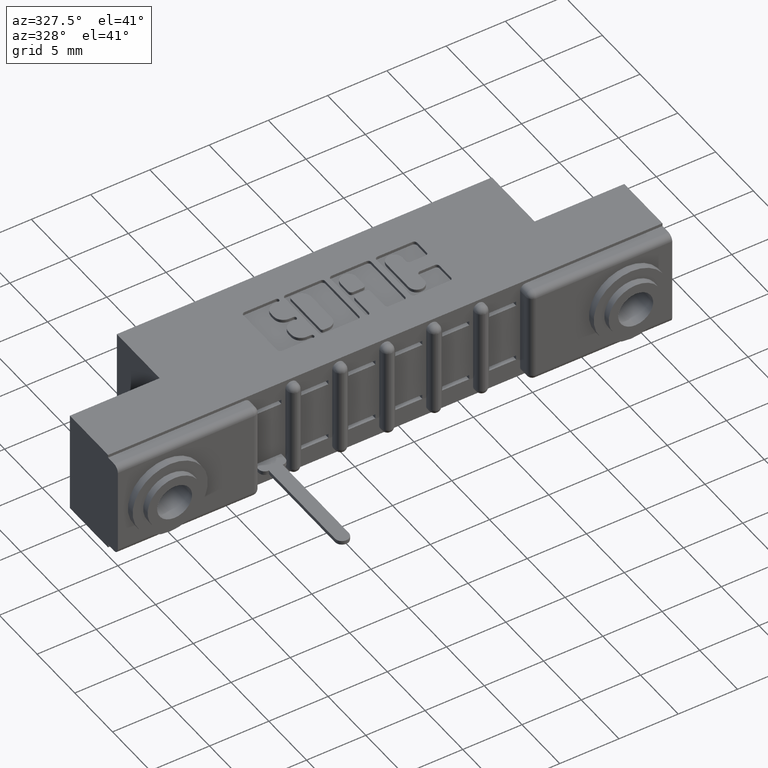
[diagram: clean part render]
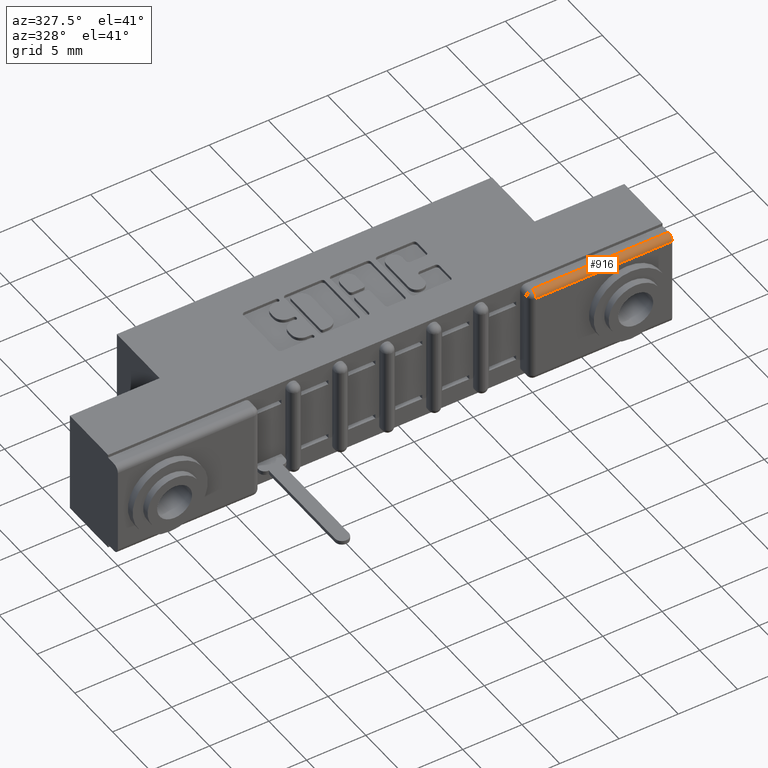
[diagram: same view with one face highlighted and labeled with its STEP entity id]
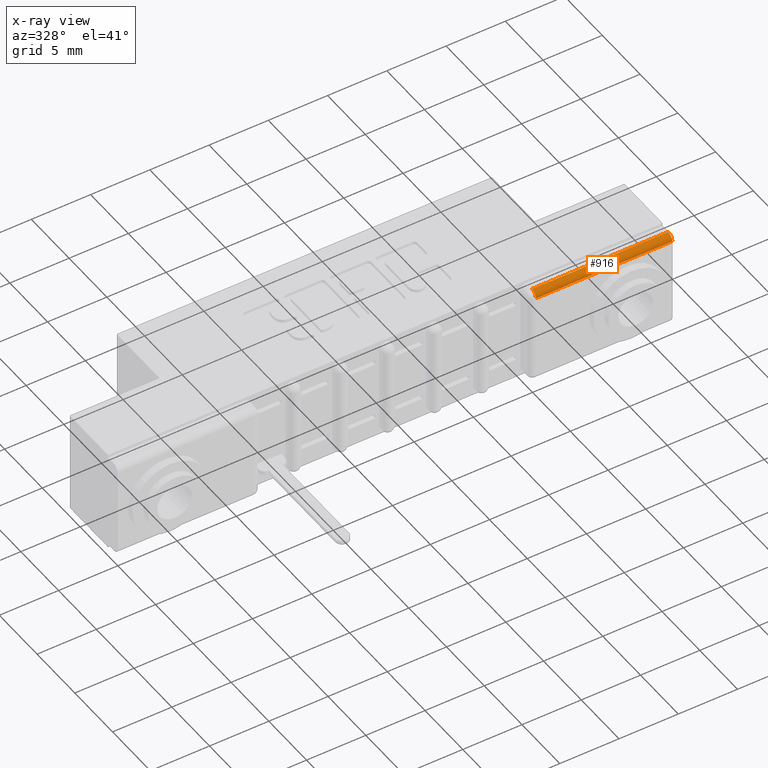
[diagram: x-ray of the same camera — body ghosted, the highlighted face saturated]
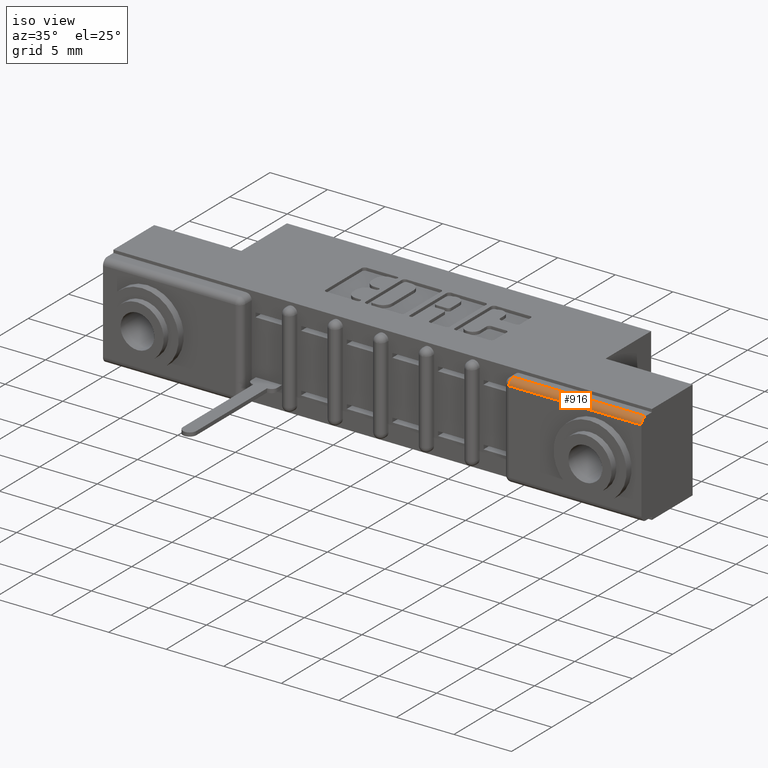
[diagram: same view with one face highlighted and labeled with its STEP entity id]
A machine part, auxiliary view. The second image highlights one B-rep face of the part: STEP entity #916.
The next image is the same camera in x-ray: the body ghosted, the highlighted face saturated — about 0% of this face is hidden behind the body in this view.
A second angle (iso view) of the same face is appended — the face is thin or edge-on in the first view.
In plain terms, the highlighted cylindrical surface (edge-blend (fillet) strip) has radius 0.508 mm, axis along (-1, 0, 0).
Its self-contained STEP definition (entity closure, byte-faithful):
#134 = AXIS2_PLACEMENT_3D ( 'NONE', #9385, #4695, #9979 ) ;
#240 = VECTOR ( 'NONE', #8565, 39.37007874015748100 ) ;
#609 = EDGE_LOOP ( 'NONE', ( #8038, #8147, #8140, #8263 ) ) ;
#869 = VERTEX_POINT ( 'NONE', #6147 ) ;
#916 = ADVANCED_FACE ( 'NONE', ( #8352 ), #8195, .T. ) ;
#1110 = VERTEX_POINT ( 'NONE', #8332 ) ;
#1679 = CARTESIAN_POINT ( 'NONE',  ( 0.0000000000000000000, 0.02000000000000000000, -0.03000000000000015800 ) ) ;
#1849 = VERTEX_POINT ( 'NONE', #8362 ) ;
#2987 = DIRECTION ( 'NONE',  ( 0.0000000000000000000, 0.0000000000000000000, 1.000000000000000000 ) ) ;
#3058 = AXIS2_PLACEMENT_3D ( 'NONE', #6160, #6058, #7289 ) ;
#4010 = AXIS2_PLACEMENT_3D ( 'NONE', #1679, #7228, #2987 ) ;
#4412 = EDGE_CURVE ( 'NONE', #1110, #5637, #5653, .T. ) ;
#4466 = EDGE_CURVE ( 'NONE', #1849, #1110, #5559, .T. ) ;
#4695 = DIRECTION ( 'NONE',  ( 1.000000000000000000, -0.0000000000000000000, -0.0000000000000000000 ) ) ;
#5559 = CIRCLE ( 'NONE', #3058, 0.02000000000000000000 ) ;
#5637 = VERTEX_POINT ( 'NONE', #7589 ) ;
#5653 = LINE ( 'NONE', #10432, #5674 ) ;
#5674 = VECTOR ( 'NONE', #10216, 39.37007874015748100 ) ;
#6058 = DIRECTION ( 'NONE',  ( -1.000000000000000000, 0.0000000000000000000, 0.0000000000000000000 ) ) ;
#6147 = CARTESIAN_POINT ( 'NONE',  ( 1.842000000000000700, 0.0000000000000000000, -0.03000000000000015800 ) ) ;
#6160 = CARTESIAN_POINT ( 'NONE',  ( 1.389000000000000500, 0.02000000000000000000, -0.03000000000000015800 ) ) ;
#7228 = DIRECTION ( 'NONE',  ( -1.000000000000000000, 0.0000000000000000000, 0.0000000000000000000 ) ) ;
#7287 = LINE ( 'NONE', #7771, #240 ) ;
#7289 = DIRECTION ( 'NONE',  ( 0.0000000000000000000, 0.0000000000000000000, 1.000000000000000000 ) ) ;
#7589 = CARTESIAN_POINT ( 'NONE',  ( 1.842000000000000700, 0.02000000000000000000, -0.01000000000000013200 ) ) ;
#7771 = CARTESIAN_POINT ( 'NONE',  ( 0.0000000000000000000, 0.0000000000000000000, -0.03000000000000015800 ) ) ;
#8038 = ORIENTED_EDGE ( 'NONE', *, *, #8990, .F. ) ;
#8140 = ORIENTED_EDGE ( 'NONE', *, *, #4466, .F. ) ;
#8147 = ORIENTED_EDGE ( 'NONE', *, *, #4412, .F. ) ;
#8195 = CYLINDRICAL_SURFACE ( 'NONE', #4010, 0.02000000000000000000 ) ;
#8263 = ORIENTED_EDGE ( 'NONE', *, *, #8957, .F. ) ;
#8332 = CARTESIAN_POINT ( 'NONE',  ( 1.389000000000000500, 0.02000000000000000000, -0.01000000000000013200 ) ) ;
#8352 = FACE_OUTER_BOUND ( 'NONE', #609, .T. ) ;
#8362 = CARTESIAN_POINT ( 'NONE',  ( 1.389000000000000500, 0.0000000000000000000, -0.03000000000000015800 ) ) ;
#8565 = DIRECTION ( 'NONE',  ( -1.000000000000000000, 0.0000000000000000000, 0.0000000000000000000 ) ) ;
#8957 = EDGE_CURVE ( 'NONE', #869, #1849, #7287, .T. ) ;
#8990 = EDGE_CURVE ( 'NONE', #5637, #869, #10285, .T. ) ;
#9385 = CARTESIAN_POINT ( 'NONE',  ( 1.842000000000000700, 0.02000000000000000000, -0.03000000000000015800 ) ) ;
#9979 = DIRECTION ( 'NONE',  ( 0.0000000000000000000, 0.0000000000000000000, 1.000000000000000000 ) ) ;
#10216 = DIRECTION ( 'NONE',  ( 1.000000000000000000, -0.0000000000000000000, -0.0000000000000000000 ) ) ;
#10285 = CIRCLE ( 'NONE', #134, 0.02000000000000000000 ) ;
#10432 = CARTESIAN_POINT ( 'NONE',  ( 1.842000000000000700, 0.02000000000000000000, -0.01000000000000013200 ) ) ;